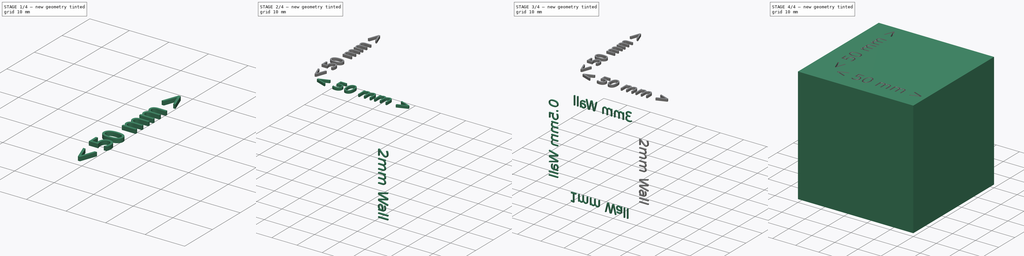
[diagram: build sequence overview — one tinted view per stage of 4, left to right]
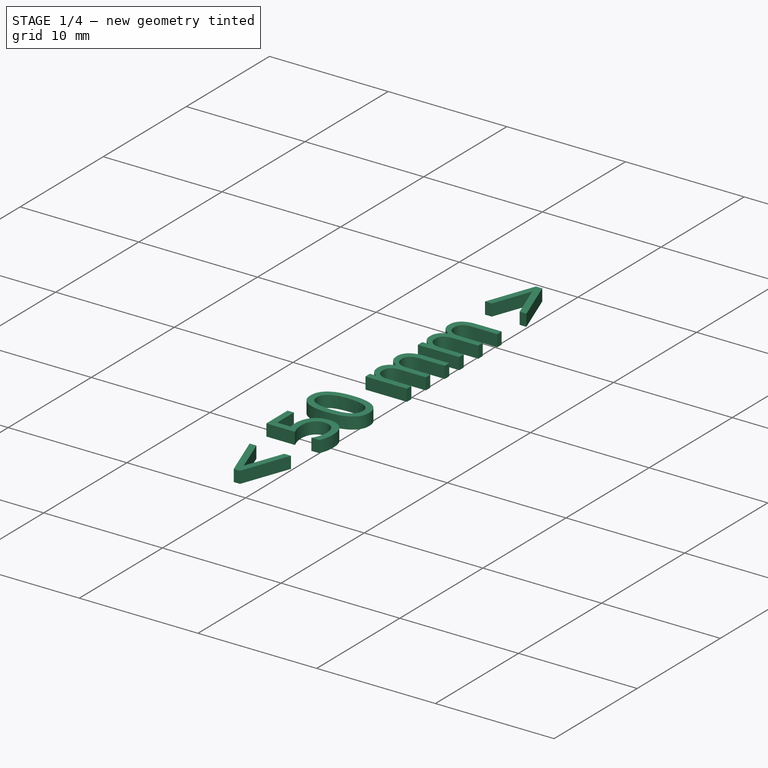
[diagram: stage 1 of 4 — iso view after this stage's code; geometry added in this stage tinted green]
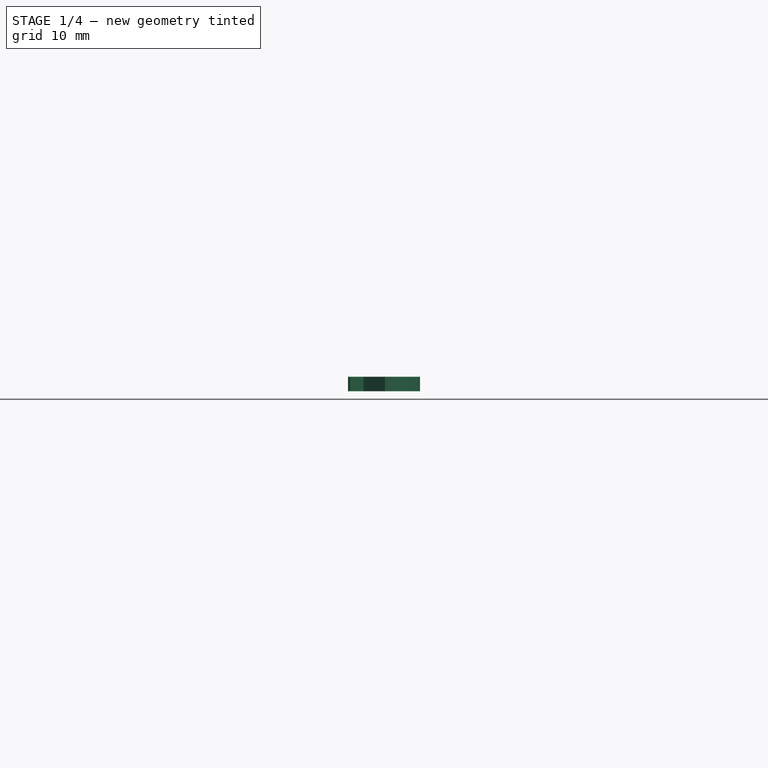
[diagram: stage 1 of 4 — front view after this stage's code; geometry added in this stage tinted green]
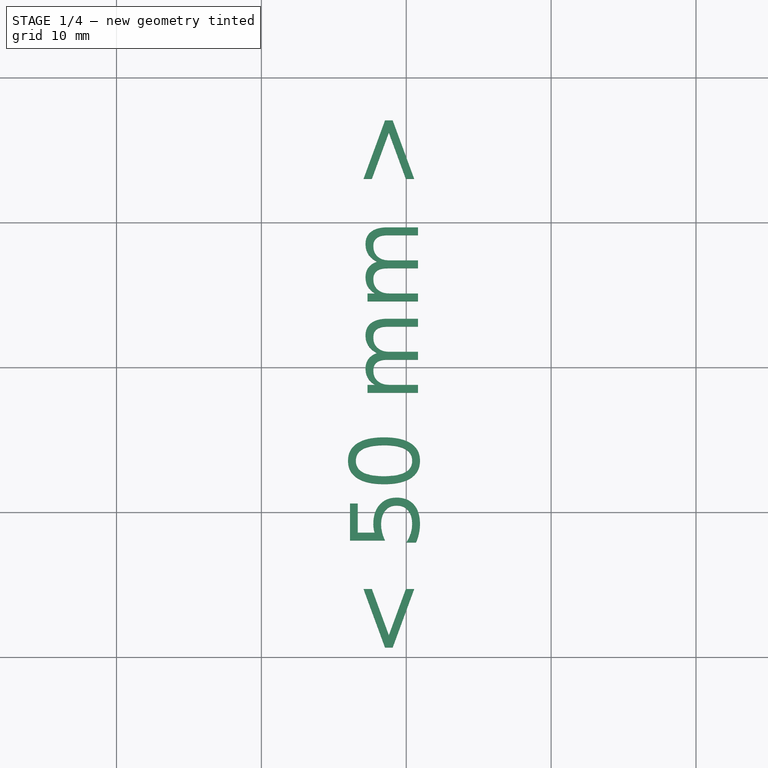
[diagram: stage 1 of 4 — top view after this stage's code; geometry added in this stage tinted green]
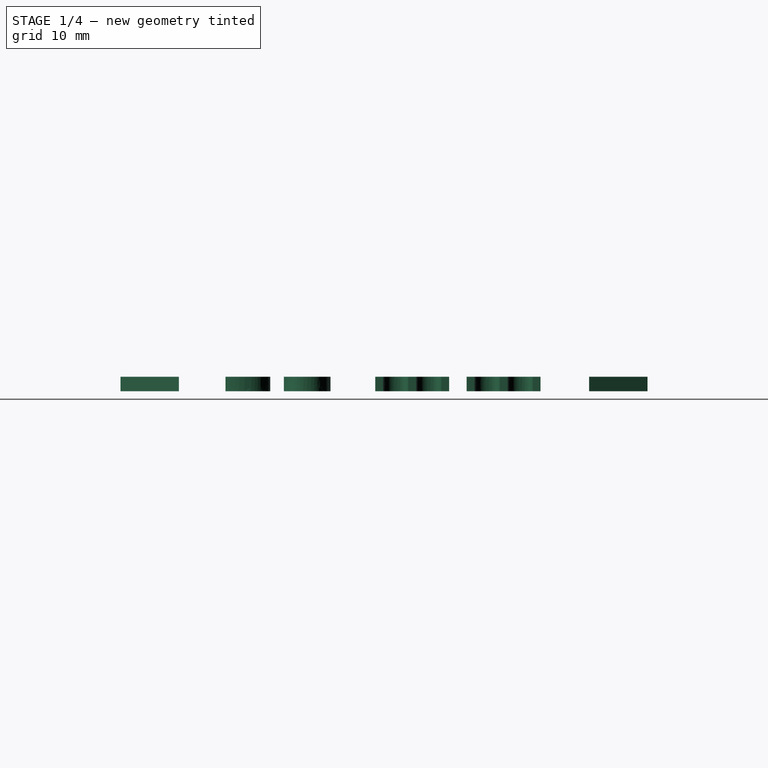
[diagram: stage 1 of 4 — right view after this stage's code; geometry added in this stage tinted green]
FCSTD DOCUMENT  (FreeCAD 0.16R4706 (Git))
Label: cubo-calibracion
License: All rights reserved
LicenseURL: http://es.wikipedia.org/wiki/Todos_los_derechos_reservados
objects: Part::Part2DObjectPython×6, Part::Extrusion×6, Part::MultiFuse×2, Part::Cut×2, Part::Box×1, Sketcher::SketchObject×1, PartDesign::Pocket×1
note: 20 computed .brp shape members not serialized (recipe doc carries the construction recipe); baked Part::Feature solids carry a one-line shape summary decoded from their .brp

FEATURE [Part::Box] Box  label="Cubo"
  Height = 50
  Length = 50
  Width = 50
FEATURE [Sketcher::SketchObject] Sketch
  ExternalGeometry = -> [Box]
  Placement = pos=(0,50,0) rot=(0,0.707107,0.707107;3.14159rad)
  Support = -> Box [Face4]
  sketch-geometry (4):
    g0: LineSegment StartX=-48 StartY=47 StartZ=0 EndX=-0.5 EndY=47 EndZ=0
    g1: LineSegment StartX=-0.5 StartY=47 StartZ=0 EndX=-0.5 EndY=1 EndZ=0
    g2: LineSegment StartX=-0.5 StartY=1 StartZ=0 EndX=-48 EndY=1 EndZ=0
    g3: LineSegment StartX=-48 StartY=1 StartZ=0 EndX=-48 EndY=47 EndZ=0
  constraints (12):
    c: Coincident(g0,g1)
    c: Coincident(g1,g2)
    c: Coincident(g2,g3)
    c: Coincident(g3,g0)
    c: Horizontal(g0)
    c: Horizontal(g2)
    c: Vertical(g1)
    c: Vertical(g3)
    c: Distance(g1,g-3) = 0.5
    c: Distance(g1,g-6) = 1
    c: Distance(g0,g-4) = 2
    c: Distance(g0,g-5) = 3
FEATURE [PartDesign::Pocket] Pocket
  Length = 49
  Sketch = -> Sketch
  Type = 0
FEATURE [Part::Extrusion] Extrude_ShapeString005  label="ShapeString005_Extrude"
  Base = -> ShapeString005
  Dir = (0,0,-1)
  Solid = false
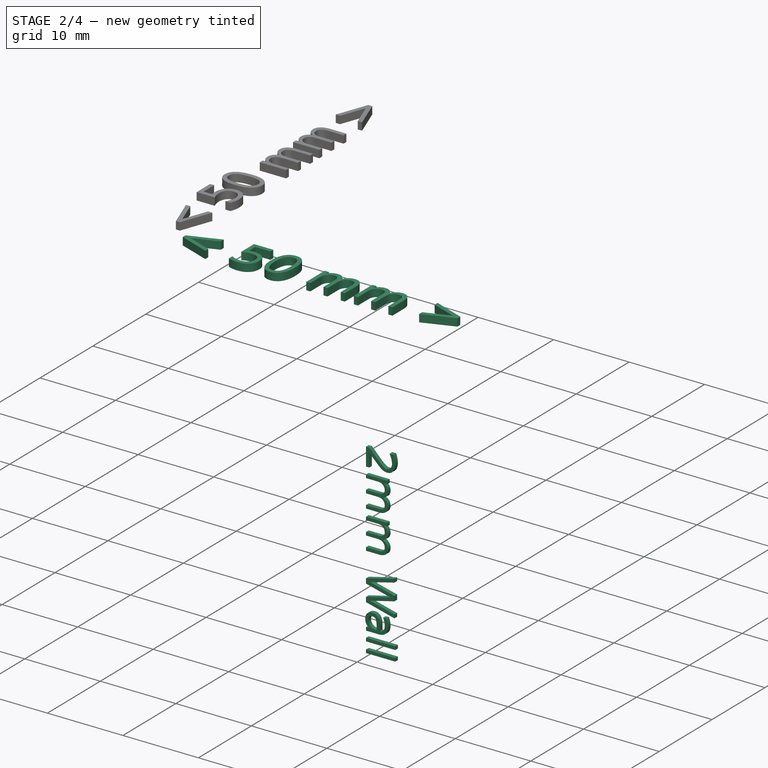
[diagram: stage 2 of 4 — iso view after this stage's code; geometry added in this stage tinted green]
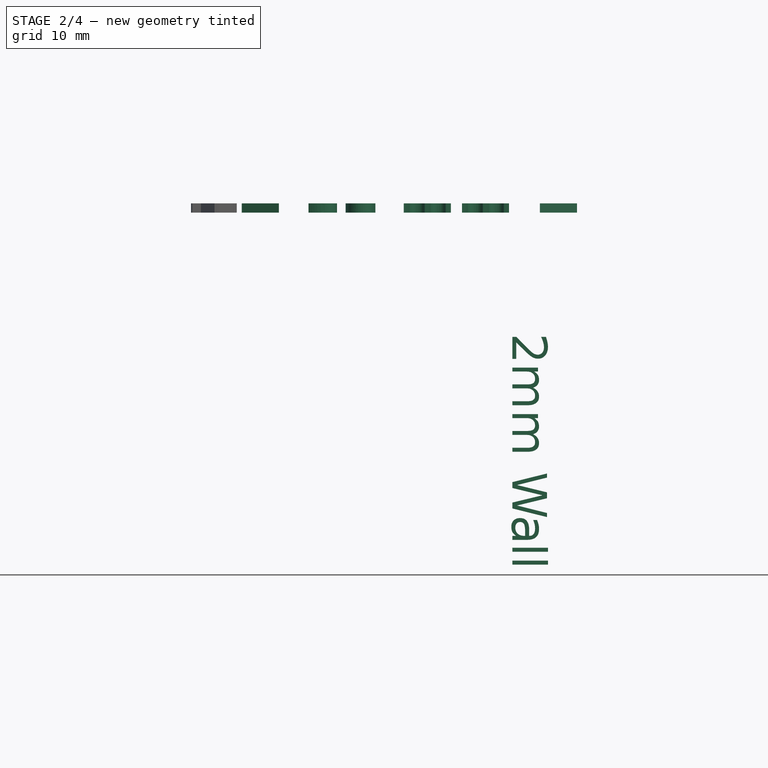
[diagram: stage 2 of 4 — front view after this stage's code; geometry added in this stage tinted green]
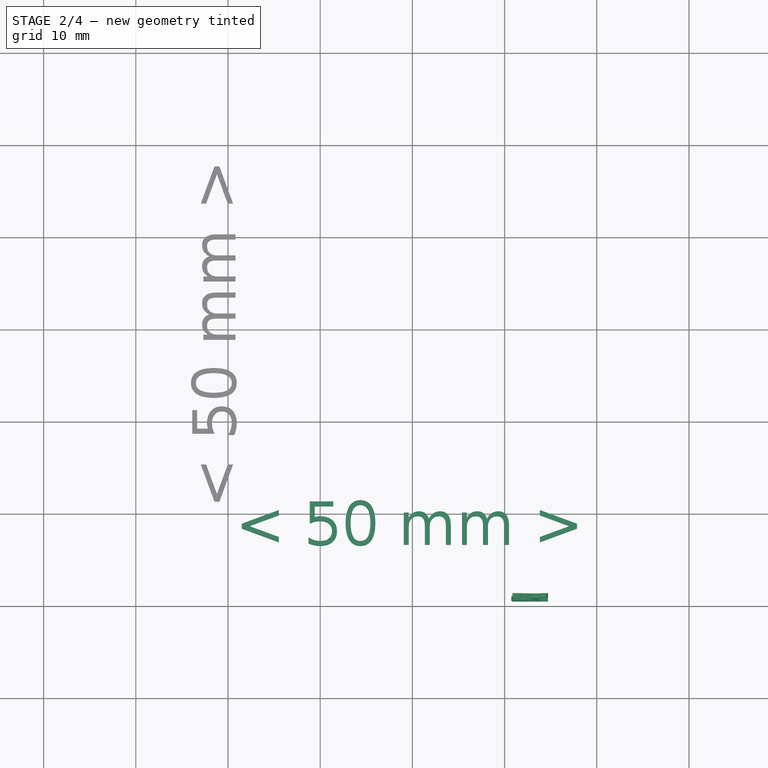
[diagram: stage 2 of 4 — top view after this stage's code; geometry added in this stage tinted green]
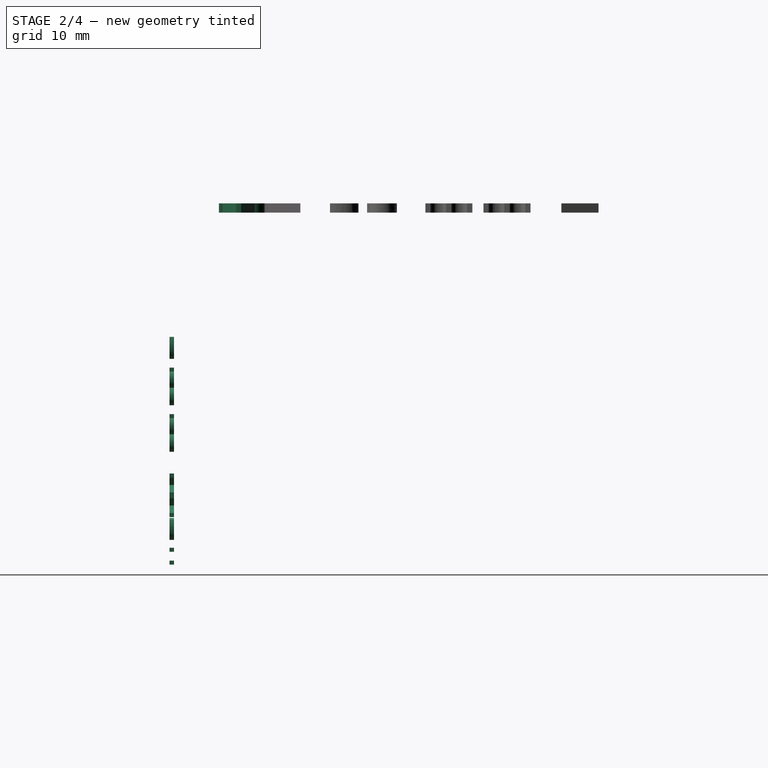
[diagram: stage 2 of 4 — right view after this stage's code; geometry added in this stage tinted green]
FEATURE [Part::Extrusion] Extrude_ShapeString003  label="ShapeString003_Extrude"
  Base = -> ShapeString003
  Dir = (0,-0.5,0)
  Solid = true
FEATURE [Part::Part2DObjectPython] ShapeString004  # Draft 2D object (typed FeaturePython)
  FontFile = <path>
  Placement = pos=(10.8121,6,50) rot=(0,0,1;0rad)
  Size = 5
  String = < 50 mm >
  Support = -> Pocket
  Tracking = 0
FEATURE [Part::Part2DObjectPython] ShapeString005  # Draft 2D object (typed FeaturePython)
  FontFile = <path>
  Placement = pos=(10.8121,10,50) rot=(0,0,1;1.5708rad)
  Size = 5
  String = < 50 mm >
  Support = -> Pocket
  Tracking = 0
FEATURE [Part::Extrusion] Extrude_ShapeString004  label="ShapeString004_Extrude"
  Base = -> ShapeString004
  Dir = (0,0,-1)
  Solid = false
FEATURE [Part::MultiFuse] Fusion001
  Shapes = -> [Extrude_ShapeString004,Extrude_ShapeString005]
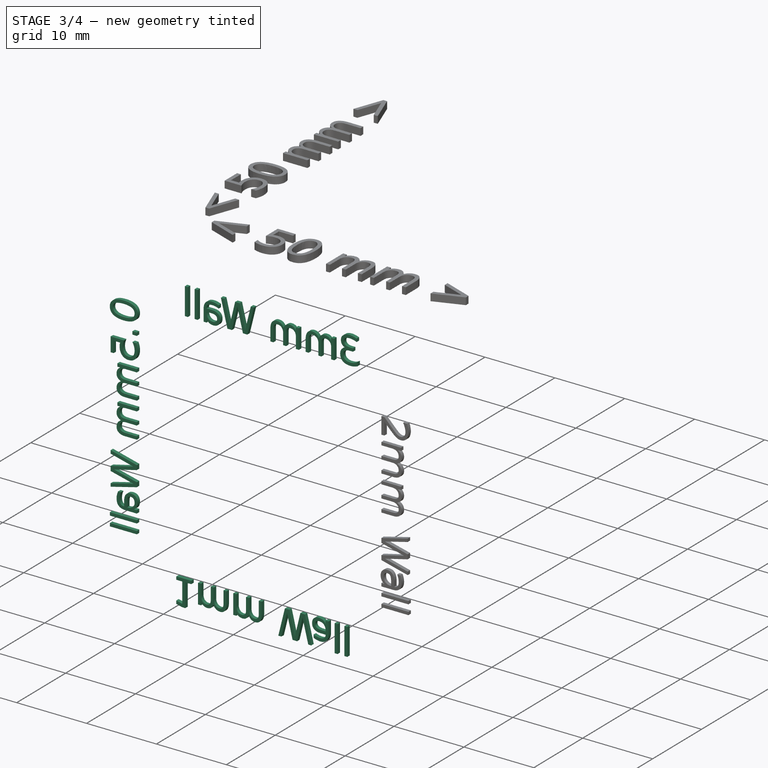
[diagram: stage 3 of 4 — iso view after this stage's code; geometry added in this stage tinted green]
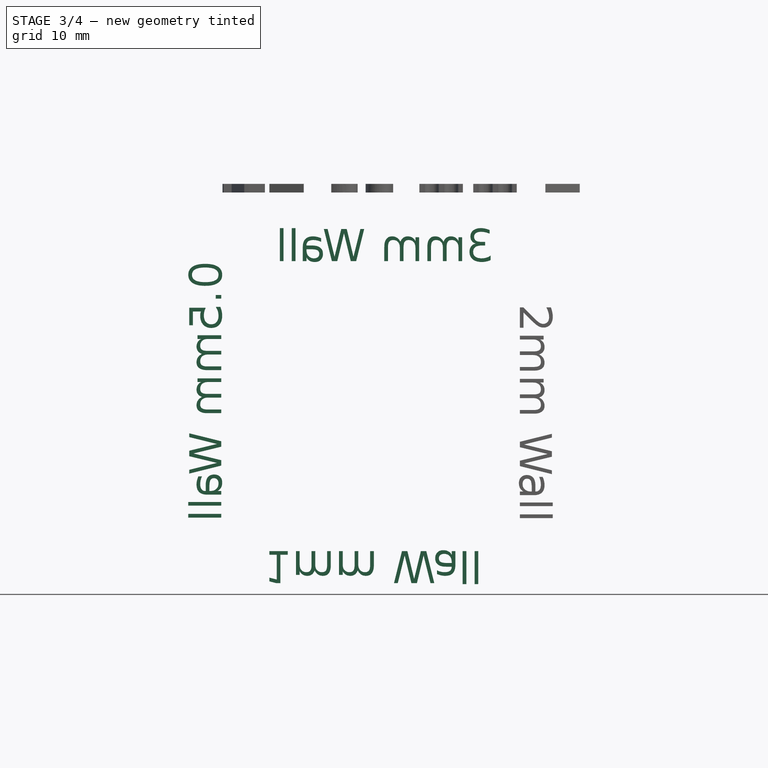
[diagram: stage 3 of 4 — front view after this stage's code; geometry added in this stage tinted green]
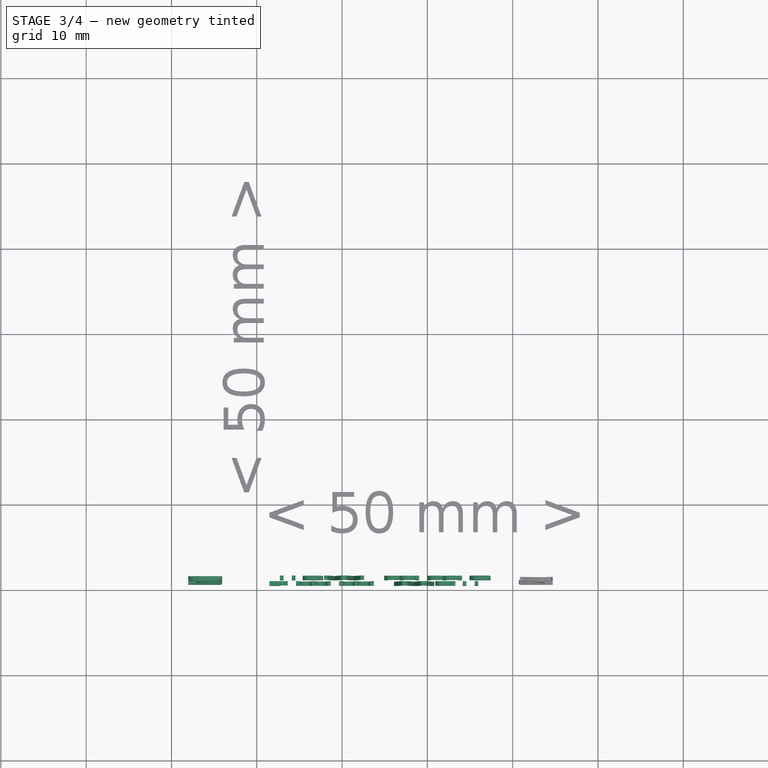
[diagram: stage 3 of 4 — top view after this stage's code; geometry added in this stage tinted green]
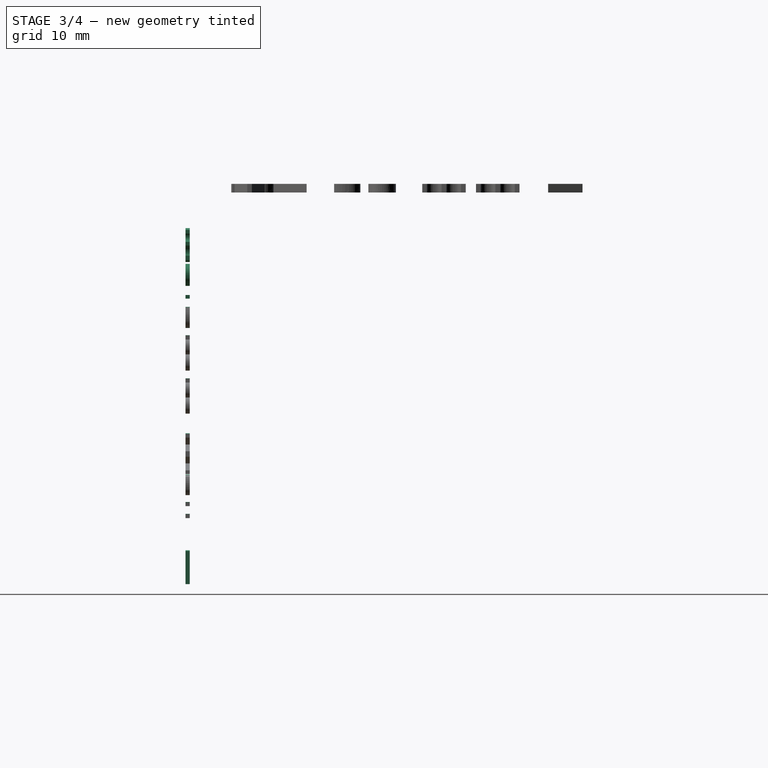
[diagram: stage 3 of 4 — right view after this stage's code; geometry added in this stage tinted green]
FEATURE [Part::Part2DObjectPython] ShapeString  # Draft 2D object (typed FeaturePython)
  FontFile = <path>
  Placement = pos=(5.83837,1,40.9512) rot=(0.57735,-0.57735,-0.57735;4.18879rad)
  Size = 4
  String = 0.5mm Wall
  Support = -> Pocket
  Tracking = 0
FEATURE [Part::Part2DObjectPython] ShapeString001  # Draft 2D object (typed FeaturePython)
  FontFile = <path>
  Placement = pos=(10.8384,1,6.9512) rot=(-1,0,0;1.5708rad)
  Size = 4
  String = 1mm Wall
  Support = -> Pocket
  Tracking = 0
FEATURE [Part::Part2DObjectPython] ShapeString002  # Draft 2D object (typed FeaturePython)
  FontFile = <path>
  Placement = pos=(37.8384,1,40.9512) rot=(0,0.707107,0.707107;3.14159rad)
  Size = 4
  String = 3mm Wall
  Support = -> Pocket
  Tracking = 0
FEATURE [Part::Part2DObjectPython] ShapeString003  # Draft 2D object (typed FeaturePython)
  FontFile = <path>
  Placement = pos=(40.8384,1,35.9512) rot=(0.57735,0.57735,-0.57735;2.0944rad)
  Size = 4
  String = 2mm Wall
  Support = -> Pocket
  Tracking = 0
FEATURE [Part::Extrusion] Extrude_ShapeString  label="ShapeString_Extrude"
  Base = -> ShapeString
  Dir = (0,-0.5,0)
  Solid = true
FEATURE [Part::Extrusion] Extrude_ShapeString001  label="ShapeString001_Extrude"
  Base = -> ShapeString001
  Dir = (0,-0.5,0)
  Solid = true
FEATURE [Part::Extrusion] Extrude_ShapeString002  label="ShapeString002_Extrude"
  Base = -> ShapeString002
  Dir = (0,-0.5,0)
  Solid = true
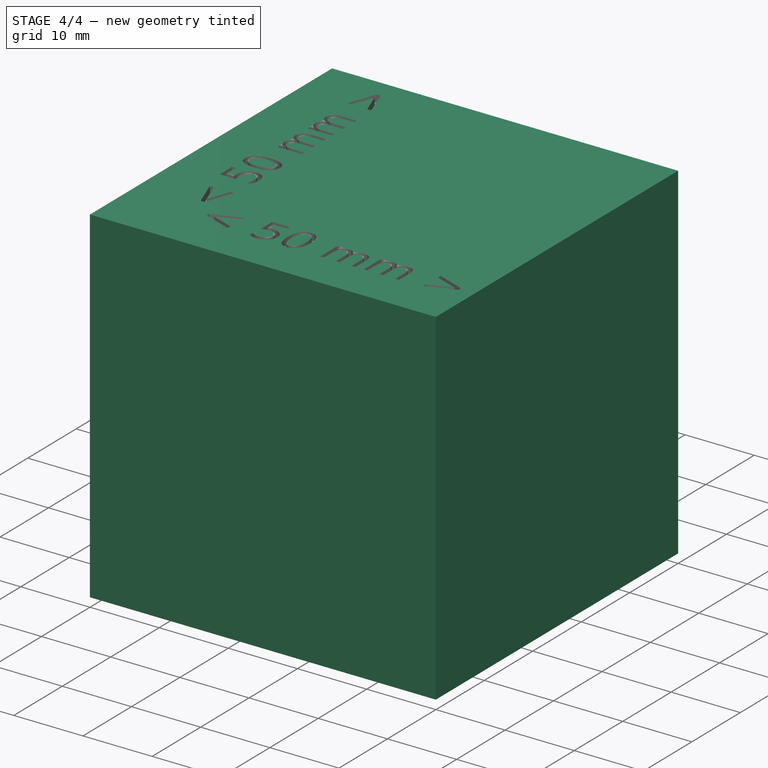
[diagram: stage 4 of 4 — iso view after this stage's code; geometry added in this stage tinted green]
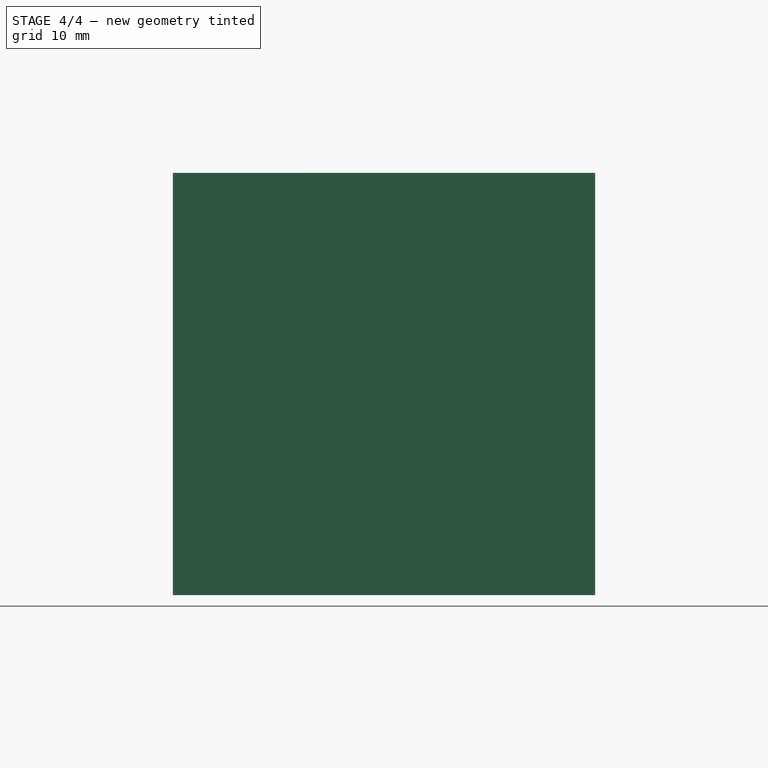
[diagram: stage 4 of 4 — front view after this stage's code; geometry added in this stage tinted green]
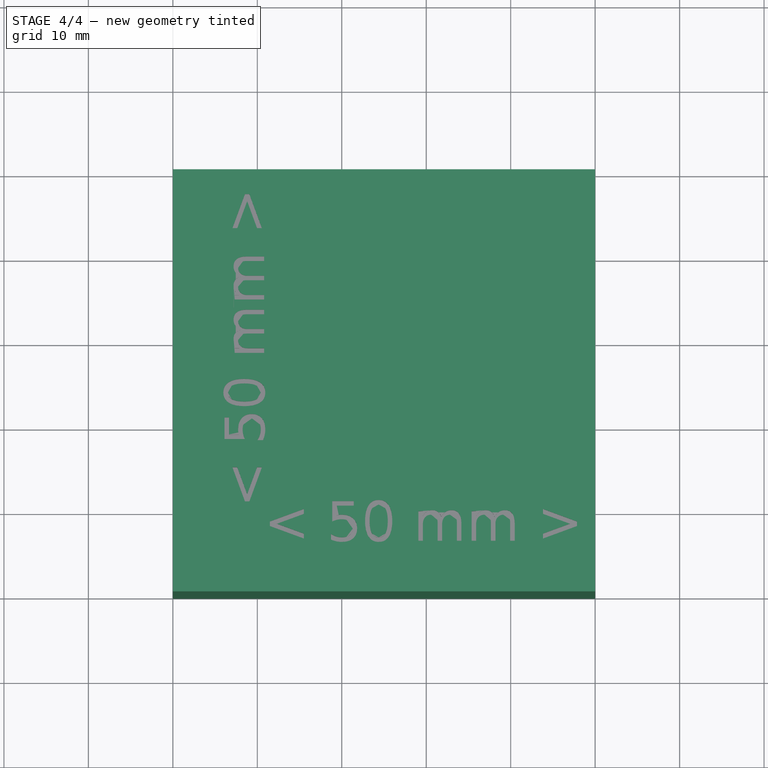
[diagram: stage 4 of 4 — top view after this stage's code; geometry added in this stage tinted green]
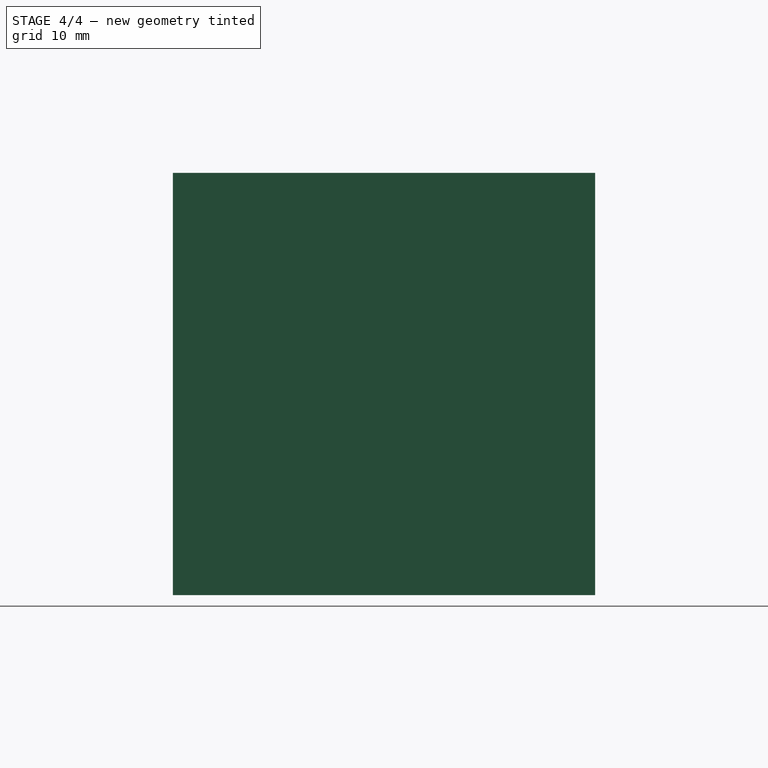
[diagram: stage 4 of 4 — right view after this stage's code; geometry added in this stage tinted green]
FEATURE [Part::MultiFuse] Fusion
  Shapes = -> [Extrude_ShapeString,Extrude_ShapeString001,Extrude_ShapeString002,Extrude_ShapeString003]
FEATURE [Part::Cut] Cut
  Base = -> Pocket
  Tool = -> Fusion
FEATURE [Part::Cut] Cut001
  Base = -> Cut
  Tool = -> Fusion001
note: 6 file-system paths scrubbed to <path> (originals preserved in the JSON sidecar)
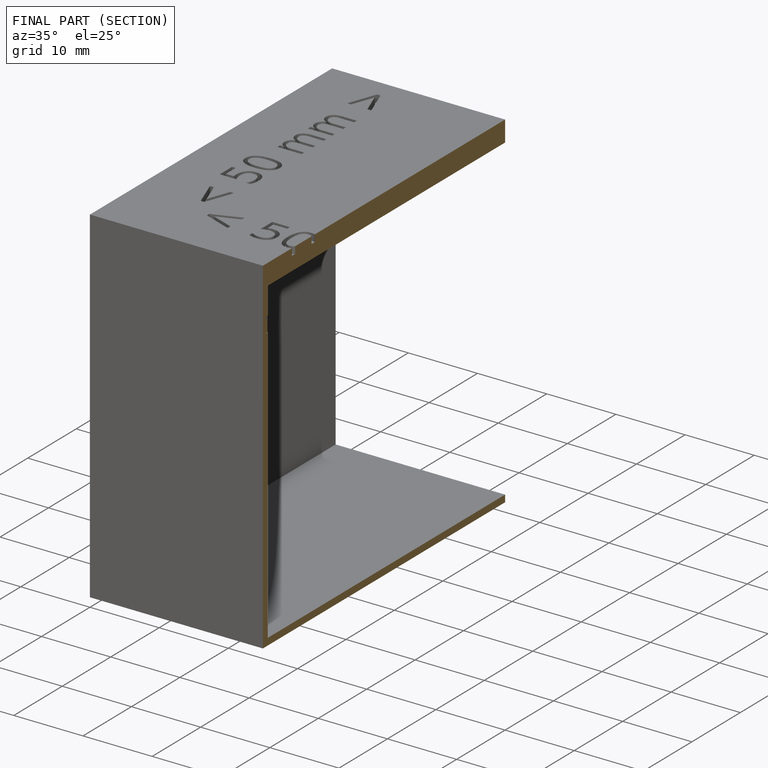
[diagram: finished part — half-section view (interior)]
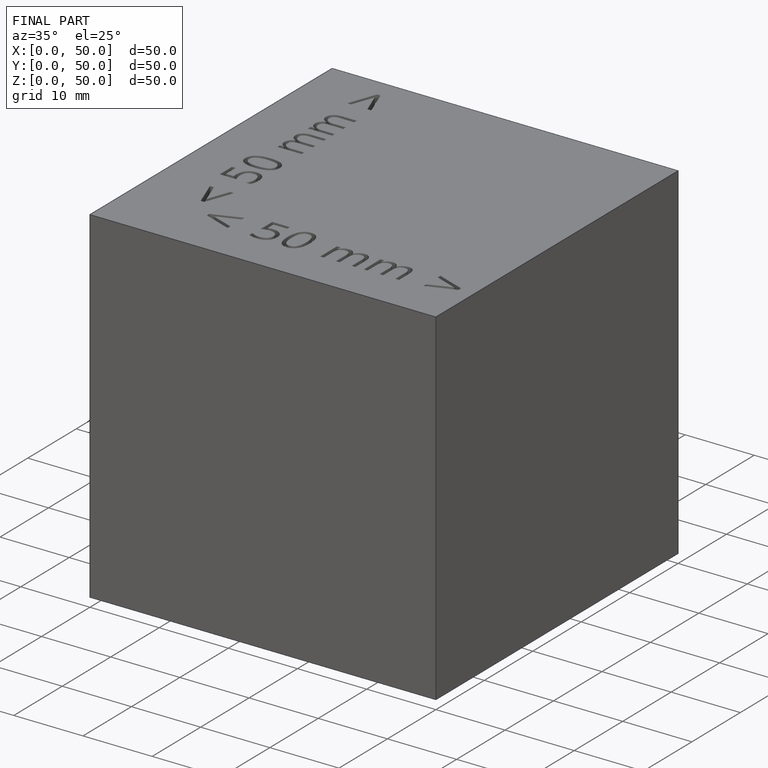
[diagram: finished part — iso view with bounding-box wireframe]
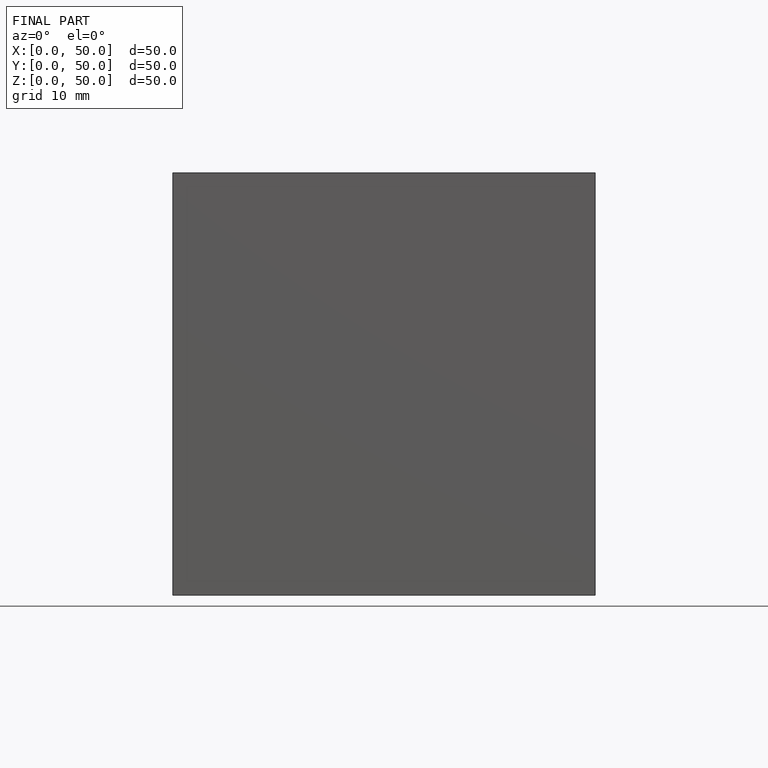
[diagram: finished part — front view with bounding-box wireframe]
